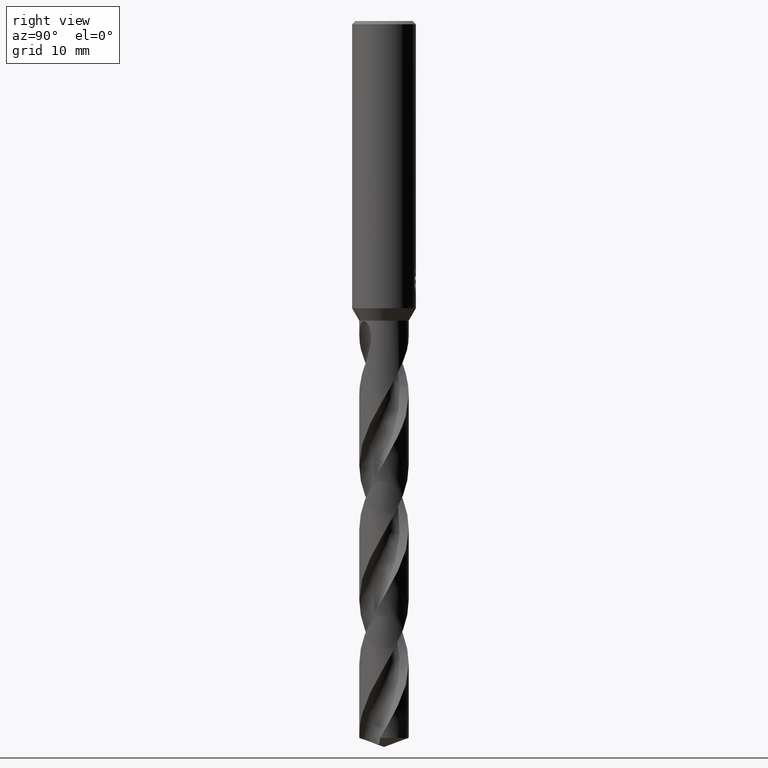
[diagram: clean part render]
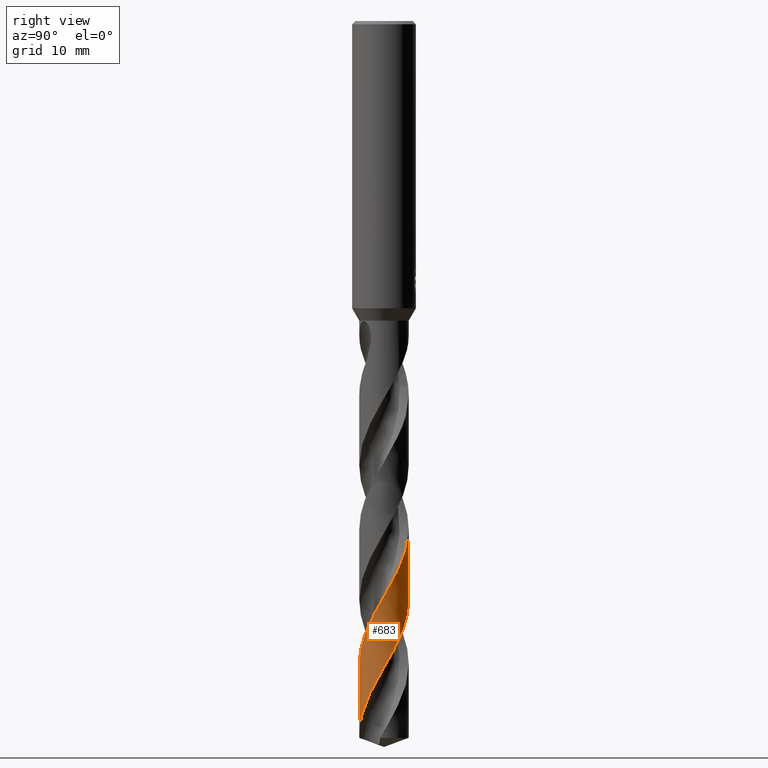
[diagram: same view with one face highlighted and labeled with its STEP entity id]
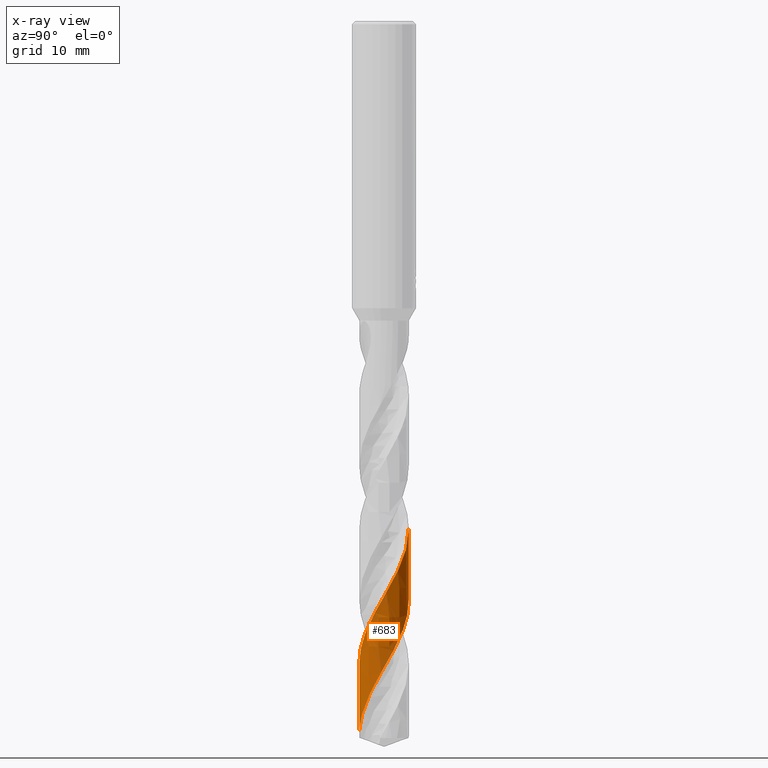
[diagram: x-ray of the same camera — body ghosted, the highlighted face saturated]
A machine part, right view. The second image highlights one B-rep face of the part: STEP entity #683.
The next image is the same camera in x-ray: the body ghosted, the highlighted face saturated — about 0% of this face is hidden behind the body in this view.
In plain terms, the highlighted conical surface has half-angle 0 deg.
Its self-contained STEP definition (entity closure, byte-faithful):
#319=VERTEX_POINT('',#875);
#483=EDGE_CURVE('',#821,#795,#1061,.T.);
#595=VERTEX_POINT('',#1184);
#633=EDGE_CURVE('',#595,#319,#1226,.T.);
#655=EDGE_CURVE('',#821,#319,#1248,.T.);
#679=EDGE_CURVE('',#595,#795,#1272,.T.);
#683=ADVANCED_FACE('',(#1276),#1277,.T.);
#795=VERTEX_POINT('',#1398);
#821=VERTEX_POINT('',#1425);
#875=CARTESIAN_POINT('',(2.7722922152994E-014,-3.09997890581277,-80.5751269903397));
#1061=B_SPLINE_CURVE_WITH_KNOTS('',3,(#6357,#6358,#6359,#6360,#6361,#6362,#6363,#6364,#6365,#6366,#6367,#6368,#6369,#6370,#6371,#6372,#6373,#6374,#6375,#6376,#6377,#6378,#6379,#6380,#6381,#6382,#6383,#6384,#6385,#6386,#6387,#6388,#6389,#6390,#6391,#6392,#6393,#6394,#6395,#6396,#6397,#6398,#6399,#6400,#6401,#6402,#6403,#6404,#6405,#6406,#6407,#6408,#6409,#6410,#6411,#6412,#6413,#6414,#6415,#6416,#6417,#6418,#6419,#6420,#6421,#6422,#6423,#6424,#6425,#6426,#6427,#6428,#6429,#6430,#6431,#6432,#6433,#6434,#6435,#6436,#6437,#6438,#6439,#6440,#6441,#6442,#6443,#6444,#6445,#6446,#6447,#6448,#6449,#6450,#6451,#6452,#6453,#6454,#6455,#6456,#6457,#6458,#6459,#6460,#6461,#6462,#6463,#6464,#6465,#6466,#6467,#6468,#6469,#6470,#6471,#6472),.UNSPECIFIED.,.F.,.F.,(4,2,2,2,2,2,2,2,2,2,2,2,2,2,2,2,2,2,2,2,2,2,2,2,2,2,2,2,2,2,2,2,2,2,2,2,2,2,2,2,2,2,2,2,2,2,2,2,2,2,2,2,2,2,2,2,2,4),(0.0,0.86392894861598,1.7320429971973,2.60459966532574,3.47693216572288,4.34672164824716,5.21868302417769,6.08931493942443,6.96144529909416,7.83248775911674,8.70483338302298,9.57603201658863,10.4485190841479,11.3200558066571,12.4532502309253,13.0502161921388,14.2134570897455,14.8096526896852,15.9771001615903,16.5729807658091,17.6804965301164,18.2769556335368,19.1477804994004,20.0190289413868,21.2195220977521,21.8149152762031,22.9359859228354,23.5321382119127,24.7317390078688,25.0302260497416,26.2153093927565,27.4152671424937,28.0192582939772,28.6200082664378,29.8198316349749,30.4197959959631,31.6209043014729,32.2204179207479,33.4227760243303,34.0208159458258,35.2237215206,35.820431429868,36.9488221427326,37.5459574560283,38.4183109926426,39.2903606953684,40.1628638465597,41.0355264994572,41.9084585349515,42.781255226258,43.6543032334151,44.5277760654534,45.344524291111,45.7027301026767,46.3701858855687,47.5452138206878,47.9842967656028,51.0981284814728),.UNSPECIFIED.);
#1184=CARTESIAN_POINT('',(-6.34321109848839E-016,3.09994062104588,-63.7023823407371));
#1226=B_SPLINE_CURVE_WITH_KNOTS('',3,(#8473,#8474,#8475,#8476,#8477,#8478,#8479,#8480,#8481,#8482,#8483,#8484,#8485,#8486,#8487,#8488,#8489,#8490,#8491,#8492,#8493,#8494,#8495,#8496,#8497,#8498,#8499,#8500,#8501,#8502,#8503,#8504,#8505,#8506,#8507,#8508,#8509,#8510,#8511,#8512,#8513,#8514,#8515,#8516,#8517,#8518,#8519,#8520,#8521,#8522,#8523,#8524,#8525,#8526,#8527,#8528,#8529,#8530,#8531,#8532,#8533,#8534,#8535,#8536,#8537,#8538,#8539,#8540,#8541,#8542,#8543,#8544,#8545,#8546,#8547,#8548,#8549,#8550,#8551,#8552,#8553,#8554,#8555,#8556,#8557,#8558,#8559,#8560,#8561,#8562,#8563,#8564,#8565,#8566,#8567,#8568,#8569,#8570,#8571,#8572,#8573,#8574,#8575,#8576,#8577,#8578,#8579,#8580,#8581,#8582,#8583,#8584,#8585,#8586,#8587,#8588,#8589,#8590,#8591,#8592),.UNSPECIFIED.,.F.,.F.,(4,2,2,2,2,2,2,2,2,2,2,2,2,2,2,2,2,2,2,2,2,2,2,2,2,2,2,2,2,2,2,2,2,2,2,2,2,2,2,2,2,2,2,2,2,2,2,2,2,2,2,2,2,2,2,2,2,2,2,4),(0.0,1.82643510596197,2.85361778950811,4.04503480417029,4.64665420450271,5.83810706277487,6.44070446870915,7.62771054473162,8.23103922001789,8.81404233892948,9.65985722623321,10.8664055311478,12.0561922111069,12.1492089650308,13.5285613513424,14.1562470478051,15.1946346387706,15.7891493755136,16.6513073592748,17.8563168296445,19.0458108733721,19.1388524508913,20.5707803240359,21.0433103067943,21.9191329787128,23.1226300287066,23.7223639250353,24.0225400431592,24.518559212565,25.3840904196162,26.5883984676625,27.7789575283418,27.8242501565883,29.1901347870735,29.745815954497,30.6124889371742,31.8165335551195,33.0070186597831,33.0521198840463,34.3990775526955,34.9852233028292,36.2395416715892,36.7226779465385,37.592480093849,38.7957857523305,39.9862919795116,40.0310910225093,41.4085136705817,42.0355589266979,43.0472499718579,44.0150516964535,44.8679883119618,45.6122291274787,46.9165312685745,47.0390454772581,47.9954003265826,48.3553603066322,48.9851194514336,49.9294834116978,50.8751472403173),.UNSPECIFIED.);
#1248=LINE('',#8765,#8766);
#1272=LINE('',#9015,#9016);
#1276=FACE_OUTER_BOUND('',#9021,.T.);
#1277=CONICAL_SURFACE('',#9022,3.09995,2.26903018333937E-006);
#1398=CARTESIAN_POINT('',(4.75900679495428E-016,3.09996079538004,-72.593552809072));
#1425=CARTESIAN_POINT('',(5.07339270026683E-013,-3.09999908570488,-89.4687469449193));
#6357=CARTESIAN_POINT('',(-0.23161073601328,-3.09133570919811,-89.8716922737748));
#6358=CARTESIAN_POINT('',(-0.0878772014299759,-3.1021040240066,-89.6223830819515));
#6359=CARTESIAN_POINT('',(0.0557470785328677,-3.10280689176042,-89.3714289707657));
#6360=CARTESIAN_POINT('',(0.342383925595236,-3.08439360508203,-88.8721993336692));
#6361=CARTESIAN_POINT('',(0.485408042623101,-3.06515816873262,-88.6229990122709));
#6362=CARTESIAN_POINT('',(0.768843253185019,-3.00664303553535,-88.1217878935849));
#6363=CARTESIAN_POINT('',(0.908708726673369,-2.96737113389155,-87.8701313916385));
#6364=CARTESIAN_POINT('',(1.18198673497554,-2.86948296057058,-87.3677011007854));
#6365=CARTESIAN_POINT('',(1.3149879703507,-2.81101698472699,-87.1173693831156));
#6366=CARTESIAN_POINT('',(1.57140445572366,-2.67611066427274,-86.6157257745105));
#6367=CARTESIAN_POINT('',(1.69444214161552,-2.59994464519124,-86.3645342205428));
#6368=CARTESIAN_POINT('',(1.92932758869467,-2.43076918156411,-85.8630075437721));
#6369=CARTESIAN_POINT('',(2.04085409132714,-2.33792053306546,-85.6128470777209));
#6370=CARTESIAN_POINT('',(2.24998067298273,-2.13739881940908,-85.111193338947));
#6371=CARTESIAN_POINT('',(2.34724408201494,-2.03009953108415,-84.8598852946205));
#6372=CARTESIAN_POINT('',(2.52626441075274,-1.80247387245408,-84.3581846828464));
#6373=CARTESIAN_POINT('',(2.60776904337359,-1.68240247304113,-84.1080191420267));
#6374=CARTESIAN_POINT('',(2.7533139632031,-1.43183107326289,-83.6063126273413));
#6375=CARTESIAN_POINT('',(2.81713012167735,-1.30177862196426,-83.3549497329225));
#6376=CARTESIAN_POINT('',(2.92623263924398,-1.03347370204266,-82.8531829280708));
#6377=CARTESIAN_POINT('',(2.97135222581447,-0.895535910784632,-82.6030169988886));
#6378=CARTESIAN_POINT('',(3.04191921301327,-0.614478493827282,-82.101316682762));
#6379=CARTESIAN_POINT('',(3.06727442725893,-0.47185821414093,-81.8499562255379));
#6380=CARTESIAN_POINT('',(3.09791264552699,-0.183887841242789,-81.348218368244));
#6381=CARTESIAN_POINT('',(3.10312458422365,-0.0388709914185756,-81.0980686731128));
#6382=CARTESIAN_POINT('',(3.09321322864089,0.250743383145918,-80.5963549315812));
#6383=CARTESIAN_POINT('',(3.07813480884873,0.394831644989668,-80.3449605940259));
#6384=CARTESIAN_POINT('',(3.0204363021386,0.722650133047232,-79.7682525787625));
#6385=CARTESIAN_POINT('',(2.97102706148638,0.90454589574125,-79.444165032426));
#6386=CARTESIAN_POINT('',(2.87094254705938,1.17360382084765,-78.9464056951193));
#6387=CARTESIAN_POINT('',(2.83197498320464,1.26474990766484,-78.7742296653603));
#6388=CARTESIAN_POINT('',(2.7042860273739,1.52774381712049,-78.2676708531314));
#6389=CARTESIAN_POINT('',(2.60386671130889,1.6932147658352,-77.9349658289606));
#6390=CARTESIAN_POINT('',(2.42978494792915,1.92763050093052,-77.4285729836932));
#6391=CARTESIAN_POINT('',(2.36700410595423,2.00422752299012,-77.2565238002056));
#6392=CARTESIAN_POINT('',(2.17058711654019,2.22171043134998,-76.7487211863289));
#6393=CARTESIAN_POINT('',(2.02737997197964,2.35310780995024,-76.4146643900522));
#6394=CARTESIAN_POINT('',(1.79407362827992,2.52999852194081,-75.9069142973078));
#6395=CARTESIAN_POINT('',(1.71236127693351,2.5860081964993,-75.7348786215371));
#6396=CARTESIAN_POINT('',(1.47131331790766,2.73476667002091,-75.244162606387));
#6397=CARTESIAN_POINT('',(1.3063288249007,2.81729702155993,-74.9268912200415));
#6398=CARTESIAN_POINT('',(1.04284857079579,2.92097120721709,-74.4359591243769));
#6399=CARTESIAN_POINT('',(0.948953445175119,2.95281269128203,-74.2636920173749));
#6400=CARTESIAN_POINT('',(0.714423456248431,3.01998967479196,-73.8408706010691));
#6401=CARTESIAN_POINT('',(0.572552930470978,3.0500746744181,-73.5908399891174));
#6402=CARTESIAN_POINT('',(0.285434857147413,3.09019622292407,-73.0890316891152));
#6403=CARTESIAN_POINT('',(0.140730675689549,3.10014947661394,-72.8374337939128));
#6404=CARTESIAN_POINT('',(-0.203625851688016,3.09969437402098,-72.2406764225865));
#6405=CARTESIAN_POINT('',(-0.402615834176213,3.08016315880803,-71.8971460882757));
#6406=CARTESIAN_POINT('',(-0.695291097501589,3.02259647150378,-71.3798147466604));
#6407=CARTESIAN_POINT('',(-0.791415795774647,2.99886749563243,-71.2078412403081));
#6408=CARTESIAN_POINT('',(-1.06500382218505,2.91723658272302,-70.7131602811402));
#6409=CARTESIAN_POINT('',(-1.23846732640606,2.84792028200654,-70.3919226543005));
#6410=CARTESIAN_POINT('',(-1.49292620645475,2.71858602086135,-69.896987047511));
#6411=CARTESIAN_POINT('',(-1.57906278549743,2.66947811624287,-69.7247377583648));
#6412=CARTESIAN_POINT('',(-1.83119556172743,2.50923486063926,-69.2070382650781));
#6413=CARTESIAN_POINT('',(-1.98883761064144,2.38620870530047,-68.8634712937893));
#6414=CARTESIAN_POINT('',(-2.16949878755545,2.21482170581287,-68.4315470275192));
#6415=CARTESIAN_POINT('',(-2.20463217778211,2.17985060889417,-68.3453985702738));
#6416=CARTESIAN_POINT('',(-2.37494614375363,2.00200241832992,-67.9179556441443));
#6417=CARTESIAN_POINT('',(-2.49726254409206,1.84721015546743,-67.5787763515913));
#6418=CARTESIAN_POINT('',(-2.71237250641613,1.51410431688107,-66.892158047467));
#6419=CARTESIAN_POINT('',(-2.80417948352162,1.33644975916036,-66.5459803732288));
#6420=CARTESIAN_POINT('',(-2.91561410950675,1.05780658579234,-66.0267297276774));
#6421=CARTESIAN_POINT('',(-2.94835293777723,0.962786667498736,-65.8531565795073));
#6422=CARTESIAN_POINT('',(-3.00432446967495,0.770496533927772,-65.5063047933781));
#6423=CARTESIAN_POINT('',(-3.02755781711384,0.673411407289479,-65.332977459281));
#6424=CARTESIAN_POINT('',(-3.08301409004522,0.37986664390801,-64.8148018777878));
#6425=CARTESIAN_POINT('',(-3.1010515595183,0.181110200966467,-64.4718432026554));
#6426=CARTESIAN_POINT('',(-3.09930743734598,-0.117687283610057,-63.954128223726));
#6427=CARTESIAN_POINT('',(-3.09392896792182,-0.217103733441607,-63.7811533953057));
#6428=CARTESIAN_POINT('',(-3.06347682551228,-0.514201712480915,-63.2631982910429));
#6429=CARTESIAN_POINT('',(-3.02412149679925,-0.709935735337614,-62.920112065454));
#6430=CARTESIAN_POINT('',(-2.93734400224399,-0.995748010120912,-62.4024699663566));
#6431=CARTESIAN_POINT('',(-2.90391641681546,-1.08938740170015,-62.2297427242555));
#6432=CARTESIAN_POINT('',(-2.79004573564962,-1.36565220090201,-61.7117646722048));
#6433=CARTESIAN_POINT('',(-2.69647054346356,-1.54219999048032,-61.3684485164651));
#6434=CARTESIAN_POINT('',(-2.5319597732062,-1.79125703709254,-60.8509505014345));
#6435=CARTESIAN_POINT('',(-2.47339445725357,-1.87129628933043,-60.67863886958));
#6436=CARTESIAN_POINT('',(-2.28562670044942,-2.10364105130129,-60.160895724602));
#6437=CARTESIAN_POINT('',(-2.14557230527577,-2.24629818524523,-59.8173959279372));
#6438=CARTESIAN_POINT('',(-1.91707373442069,-2.43806927459535,-59.3000144240718));
#6439=CARTESIAN_POINT('',(-1.83825727865753,-2.49803738694014,-59.1280026009204));
#6440=CARTESIAN_POINT('',(-1.60228886390252,-2.66032369878694,-58.6318126042846));
#6441=CARTESIAN_POINT('',(-1.43868085663709,-2.75223467592739,-58.3091313621848));
#6442=CARTESIAN_POINT('',(-1.17745905120562,-2.8693122145492,-57.8127791843269));
#6443=CARTESIAN_POINT('',(-1.08516031297561,-2.90547852004045,-57.6405824682262));
#6444=CARTESIAN_POINT('',(-0.853959509672036,-2.98350078521467,-57.217760436126));
#6445=CARTESIAN_POINT('',(-0.713592209796309,-3.02015451676898,-56.9676622385887));
#6446=CARTESIAN_POINT('',(-0.428707415810659,-3.073554197868,-56.4658919125273));
#6447=CARTESIAN_POINT('',(-0.284718120313271,-3.09021224099306,-56.214381956499));
#6448=CARTESIAN_POINT('',(0.0045406588318391,-3.10329989174034,-55.7125806013995));
#6449=CARTESIAN_POINT('',(0.149541244145595,-3.09970300979548,-55.4625252855603));
#6450=CARTESIAN_POINT('',(0.438127273955875,-3.07222499925832,-54.9607314894061));
#6451=CARTESIAN_POINT('',(0.581173126477325,-3.04839480073705,-54.7091745020269));
#6452=CARTESIAN_POINT('',(0.862856632520351,-2.98093230083688,-54.2072622756909));
#6453=CARTESIAN_POINT('',(1.00122507507681,-2.93735466383071,-53.9571753046047));
#6454=CARTESIAN_POINT('',(1.27092554755834,-2.83111969923208,-53.4553858361125));
#6455=CARTESIAN_POINT('',(1.40175506403722,-2.76866719769676,-53.2038432428369));
#6456=CARTESIAN_POINT('',(1.65368519812107,-2.62597897643545,-52.7020374226591));
#6457=CARTESIAN_POINT('',(1.7745661106751,-2.54585734050924,-52.4520116510254));
#6458=CARTESIAN_POINT('',(2.00439355064854,-2.36915477700288,-51.9502109411721));
#6459=CARTESIAN_POINT('',(2.11289908713385,-2.27290369721329,-51.6986219795298));
#6460=CARTESIAN_POINT('',(2.30901043201499,-2.07274273807309,-51.2130041579435));
#6461=CARTESIAN_POINT('',(2.39737779850925,-1.96987378432544,-50.9790883455235));
#6462=CARTESIAN_POINT('',(2.51446234713938,-1.81396270623136,-50.6416456015948));
#6463=CARTESIAN_POINT('',(2.54875666982574,-1.76544869993128,-50.538809386228));
#6464=CARTESIAN_POINT('',(2.64283678795318,-1.62391135801904,-50.2440972044749));
#6465=CARTESIAN_POINT('',(2.69912760492979,-1.52853484496684,-50.0517790974017));
#6466=CARTESIAN_POINT('',(2.84020126824863,-1.25726396577121,-49.5221625668913));
#6467=CARTESIAN_POINT('',(2.91357817426509,-1.07628636457411,-49.1865473476289));
#6468=CARTESIAN_POINT('',(2.99034146838399,-0.820104605690705,-48.7223988246864));
#6469=CARTESIAN_POINT('',(3.0087834276853,-0.749634524448364,-48.5958077158101));
#6470=CARTESIAN_POINT('',(3.13784897054691,-0.174278665063975,-47.5733112600682));
#6471=CARTESIAN_POINT('',(3.12269125340517,0.348755904938991,-46.7004294350735));
#6472=CARTESIAN_POINT('',(2.98316187679143,0.842689323087244,-45.8048613356037));
#8473=CARTESIAN_POINT('',(0.588103262193996,-3.04360224404552,-45.8040491902376));
#8474=CARTESIAN_POINT('',(0.289334520906522,-3.10133336864086,-46.3313593882796));
#8475=CARTESIAN_POINT('',(-0.0164603239058085,-3.11477240677752,-46.8564692435581));
#8476=CARTESIAN_POINT('',(-0.489585871605799,-3.06578326149013,-47.680314521257));
#8477=CARTESIAN_POINT('',(-0.658136759037895,-3.03406950198883,-47.9765572393545));
#8478=CARTESIAN_POINT('',(-1.01464372602082,-2.93587315282257,-48.6171132874279));
#8479=CARTESIAN_POINT('',(-1.20054128680928,-2.86487726850293,-48.9602943461726));
#8480=CARTESIAN_POINT('',(-1.4681031767585,-2.7320597373866,-49.4780581659741));
#8481=CARTESIAN_POINT('',(-1.55568589431176,-2.6831568954647,-49.6516792706607));
#8482=CARTESIAN_POINT('',(-1.80925452119587,-2.52497065270993,-50.1693704179155));
#8483=CARTESIAN_POINT('',(-1.96722581441517,-2.40392950796596,-50.5124739448749));
#8484=CARTESIAN_POINT('',(-2.18598698291103,-2.20022615193957,-51.0305177428606));
#8485=CARTESIAN_POINT('',(-2.25611248006355,-2.12826241739603,-51.2044158702311));
#8486=CARTESIAN_POINT('',(-2.45366544988688,-1.90476611156881,-51.7211094395351));
#8487=CARTESIAN_POINT('',(-2.57018417055182,-1.74434473444805,-52.0630451329935));
#8488=CARTESIAN_POINT('',(-2.72164844161366,-1.48735029632297,-52.5800142610074));
#8489=CARTESIAN_POINT('',(-2.76845839246491,-1.39829549226523,-52.7541139557536));
#8490=CARTESIAN_POINT('',(-2.85184266142336,-1.21898334834294,-53.0966251060381));
#8491=CARTESIAN_POINT('',(-2.88864706784241,-1.12900056672254,-53.2647570165461));
#8492=CARTESIAN_POINT('',(-2.96833512746645,-0.904624127236036,-53.6773301899947));
#8493=CARTESIAN_POINT('',(-3.00639600687631,-0.768730909952392,-53.9214283669058));
#8494=CARTESIAN_POINT('',(-3.07598979706403,-0.433845860281638,-54.5140604906625));
#8495=CARTESIAN_POINT('',(-3.09764577202333,-0.233480791450241,-54.8613456986927));
#8496=CARTESIAN_POINT('',(-3.10182784174892,0.1657747651832,-55.5533533084621));
#8497=CARTESIAN_POINT('',(-3.084884459954,0.363805723793878,-55.8960977575618));
#8498=CARTESIAN_POINT('',(-3.046326340101,0.574163350286496,-56.2664687709671));
#8499=CARTESIAN_POINT('',(-3.04341630787829,0.589393967606319,-56.2933213437765));
#8500=CARTESIAN_POINT('',(-2.99554503128025,0.830131365846441,-56.7184658719612));
#8501=CARTESIAN_POINT('',(-2.92573454637381,1.05000209727587,-57.1160450963679));
#8502=CARTESIAN_POINT('',(-2.78971093767374,1.35573306601381,-57.6956196086278));
#8503=CARTESIAN_POINT('',(-2.74236595201994,1.44911085534003,-57.8766809544021));
#8504=CARTESIAN_POINT('',(-2.60443359089467,1.69009810639265,-58.3578785183608));
#8505=CARTESIAN_POINT('',(-2.50602032090711,1.83286594126932,-58.6573902565873));
#8506=CARTESIAN_POINT('',(-2.33329357608879,2.04331451148327,-59.128955219706));
#8507=CARTESIAN_POINT('',(-2.26677766093998,2.11686316409788,-59.300447089155));
#8508=CARTESIAN_POINT('',(-2.09546718054207,2.28894003683808,-59.7211671091147));
#8509=CARTESIAN_POINT('',(-1.98710736194097,2.38361930286679,-59.9700288259814));
#8510=CARTESIAN_POINT('',(-1.71247837852497,2.59178683741915,-60.5670763939086));
#8511=CARTESIAN_POINT('',(-1.54099611441446,2.69726792869457,-60.9140106937845));
#8512=CARTESIAN_POINT('',(-1.18242240919232,2.87241682023699,-61.6056690592128));
#8513=CARTESIAN_POINT('',(-0.996309367146494,2.94216232123364,-61.9484183015114));
#8514=CARTESIAN_POINT('',(-0.789772937869025,2.99768440908244,-62.3188068871485));
#8515=CARTESIAN_POINT('',(-0.774761243329322,3.00159931768026,-62.3456740780164));
#8516=CARTESIAN_POINT('',(-0.528240743479078,3.06391704172393,-62.7861232143678));
#8517=CARTESIAN_POINT('',(-0.290731805534231,3.09550170845146,-63.198809815183));
#8518=CARTESIAN_POINT('',(0.0268421209542511,3.1008261037376,-63.7488863035454));
#8519=CARTESIAN_POINT('',(0.105642145241391,3.09914186988081,-63.8852673674125));
#8520=CARTESIAN_POINT('',(0.330039206610494,3.085779400627,-64.2747888607967));
#8521=CARTESIAN_POINT('',(0.47501376413839,3.06681133719341,-64.5276379209311));
#8522=CARTESIAN_POINT('',(0.814759702010555,2.99768042523197,-65.1283203926461));
#8523=CARTESIAN_POINT('',(1.00702840145684,2.9386730354772,-65.4749314437904));
#8524=CARTESIAN_POINT('',(1.28450395448522,2.82306723303343,-65.995901256648));
#8525=CARTESIAN_POINT('',(1.37489128320124,2.78016949554447,-66.1690809608988));
#8526=CARTESIAN_POINT('',(1.50719235173148,2.70934439730555,-66.4290438061377));
#8527=CARTESIAN_POINT('',(1.55074834078742,2.68465222591915,-66.5157392099937));
#8528=CARTESIAN_POINT('',(1.66465087377031,2.61638229885811,-66.7457270018569));
#8529=CARTESIAN_POINT('',(1.73386506183353,2.57103644163112,-66.8888859029931));
#8530=CARTESIAN_POINT('',(1.91862880919645,2.43913342490662,-67.2822448993767));
#8531=CARTESIAN_POINT('',(2.03009217475305,2.34717750235874,-67.5321481527457));
#8532=CARTESIAN_POINT('',(2.28036196012712,2.10949571749498,-68.1301354643679));
#8533=CARTESIAN_POINT('',(2.41217672739307,1.95739881240037,-68.4769835310716));
#8534=CARTESIAN_POINT('',(2.64318265199139,1.63177412223516,-69.1689345044827));
#8535=CARTESIAN_POINT('',(2.74224367216656,1.45919514147841,-69.5120604695946));
#8536=CARTESIAN_POINT('',(2.82724819557261,1.27139424364361,-69.8690636946876));
#8537=CARTESIAN_POINT('',(2.83033812595239,1.26450067498761,-69.8821466817364));
#8538=CARTESIAN_POINT('',(2.92582991156619,1.04935689947086,-70.2898323125685));
#8539=CARTESIAN_POINT('',(2.99502817750081,0.831535925002278,-70.6837684421178));
#8540=CARTESIAN_POINT('',(3.05791037777818,0.517218086983167,-71.2389546892676));
#8541=CARTESIAN_POINT('',(3.07200549032618,0.425570156042063,-71.3993396742257));
#8542=CARTESIAN_POINT('',(3.09752033192239,0.189745211042753,-71.8103491434829));
#8543=CARTESIAN_POINT('',(3.10299973156158,0.0451290231282508,-72.0606318126142));
#8544=CARTESIAN_POINT('',(3.09193289434829,-0.300061455531619,-72.6589931709906));
#8545=CARTESIAN_POINT('',(3.06601019331909,-0.499651819051331,-73.0058342242899));
#8546=CARTESIAN_POINT('',(2.976456619444,-0.888753859923777,-73.6978246741312));
#8547=CARTESIAN_POINT('',(2.91344253679373,-1.07753344000425,-74.0409944685926));
#8548=CARTESIAN_POINT('',(2.82972048128366,-1.26590715847914,-74.3979933554558));
#8549=CARTESIAN_POINT('',(2.82663967201116,-1.27277149644686,-74.4110236549438));
#8550=CARTESIAN_POINT('',(2.73077377654294,-1.4843048969691,-74.8132685754242));
#8551=CARTESIAN_POINT('',(2.61601977475588,-1.67831446049198,-75.2018738672223));
#8552=CARTESIAN_POINT('',(2.42268845887225,-1.93647776277913,-75.7605142283186));
#8553=CARTESIAN_POINT('',(2.36040628548768,-2.01192567295495,-75.9297156881648));
#8554=CARTESIAN_POINT('',(2.15399867188842,-2.23916827841118,-76.461652204507));
#8555=CARTESIAN_POINT('',(1.9979747410119,-2.37943761414299,-76.8234715477715));
#8556=CARTESIAN_POINT('',(1.76388518617562,-2.55049648212825,-77.3255909675168));
#8557=CARTESIAN_POINT('',(1.69697480641301,-2.59549558869542,-77.465104845818));
#8558=CARTESIAN_POINT('',(1.50493165566961,-2.7140494284155,-77.8561660274854));
#8559=CARTESIAN_POINT('',(1.37625867150191,-2.78151115562346,-78.1074203390852));
#8560=CARTESIAN_POINT('',(1.05943110079789,-2.92023120857972,-78.7066410763869));
#8561=CARTESIAN_POINT('',(0.868169972004715,-2.98268488063928,-79.0533771617978));
#8562=CARTESIAN_POINT('',(0.478406637050604,-3.06926907635125,-79.7453574193828));
#8563=CARTESIAN_POINT('',(0.280822994105794,-3.09361814042826,-80.0886250079828));
#8564=CARTESIAN_POINT('',(0.074742710977954,-3.09908644867488,-80.4456427620813));
#8565=CARTESIAN_POINT('',(0.0672689067706145,-3.09925771052073,-80.4585899874204));
#8566=CARTESIAN_POINT('',(-0.170013367594751,-3.10383637034571,-80.8696473456679));
#8567=CARTESIAN_POINT('',(-0.399633983256207,-3.0826961285654,-81.267053099503));
#8568=CARTESIAN_POINT('',(-0.727294571162734,-3.01527458066351,-81.8464410391716));
#8569=CARTESIAN_POINT('',(-0.828637265308102,-2.98901195115037,-82.0274880738962));
#8570=CARTESIAN_POINT('',(-1.08946970607632,-2.90713553184531,-82.5012456250839));
#8571=CARTESIAN_POINT('',(-1.24613487594228,-2.84351115464841,-82.7933712410196));
#8572=CARTESIAN_POINT('',(-1.5410539981132,-2.69465186401898,-83.3655840495498));
#8573=CARTESIAN_POINT('',(-1.67930451381189,-2.61073053536128,-83.6448181642076));
#8574=CARTESIAN_POINT('',(-1.92586347714999,-2.43335464807216,-84.1712243776167));
#8575=CARTESIAN_POINT('',(-2.03553633645312,-2.34238771298927,-84.4175447741317));
#8576=CARTESIAN_POINT('',(-2.22851545344906,-2.15848970349396,-84.8792420613239));
#8577=CARTESIAN_POINT('',(-2.31318565580895,-2.06749139441623,-85.0941035288848));
#8578=CARTESIAN_POINT('',(-2.53055214647484,-1.80377220006145,-85.6863820252141));
#8579=CARTESIAN_POINT('',(-2.65092721603577,-1.62170673639663,-86.0624465000451));
#8580=CARTESIAN_POINT('',(-2.76067677363256,-1.41033123361003,-86.4748922045507));
#8581=CARTESIAN_POINT('',(-2.76991926367484,-1.39209126719044,-86.5103017607811));
#8582=CARTESIAN_POINT('',(-2.84971547448907,-1.23067312431433,-86.8222145753241));
#8583=CARTESIAN_POINT('',(-2.90928374173526,-1.08235570034695,-87.0985793306403));
#8584=CARTESIAN_POINT('',(-2.97518586351396,-0.872836153087066,-87.4791989752396));
#8585=CARTESIAN_POINT('',(-2.9915409857047,-0.815021384218135,-87.5832551414067));
#8586=CARTESIAN_POINT('',(-3.03186709130436,-0.654829696873242,-87.8694113879083));
#8587=CARTESIAN_POINT('',(-3.05232584309304,-0.55166059949728,-88.0513268330817));
#8588=CARTESIAN_POINT('',(-3.09026599978998,-0.291685725081591,-88.5064518690816));
#8589=CARTESIAN_POINT('',(-3.10110496398653,-0.134170212965056,-88.7790912983908));
#8590=CARTESIAN_POINT('',(-3.09871115263738,0.181436025909451,-89.3254609041505));
#8591=CARTESIAN_POINT('',(-3.08545422419516,0.338835735007127,-89.5980567787333));
#8592=CARTESIAN_POINT('',(-3.06031690597856,0.494429403435741,-89.8716922737748));
#8765=CARTESIAN_POINT('',(3.78778744756102E-016,-3.09995,-67.8358461368874));
#8766=VECTOR('',#12087,1.0);
#9015=CARTESIAN_POINT('',(-3.80464948550234E-016,3.09995,-67.8358461368874));
#9016=VECTOR('',#12094,1.0);
#9021=EDGE_LOOP('',(#12099,#12100,#12101,#12102));
#9022=AXIS2_PLACEMENT_3D('',#12103,#12104,#12105);
#12087=DIRECTION('',(-2.77866877952976E-022,2.26903018333742E-006,0.999999999997426));
#12094=DIRECTION('',(-2.77866877952976E-022,2.26903018333742E-006,-0.999999999997426));
#12099=ORIENTED_EDGE('',*,*,#679,.F.);
#12100=ORIENTED_EDGE('',*,*,#633,.T.);
#12101=ORIENTED_EDGE('',*,*,#655,.F.);
#12102=ORIENTED_EDGE('',*,*,#483,.T.);
#12103=CARTESIAN_POINT('',(0.0,0.0,-67.8358461368874));
#12104=DIRECTION('',(0.0,-0.0,-1.0));
#12105=DIRECTION('',(0.0,1.0,0.0));